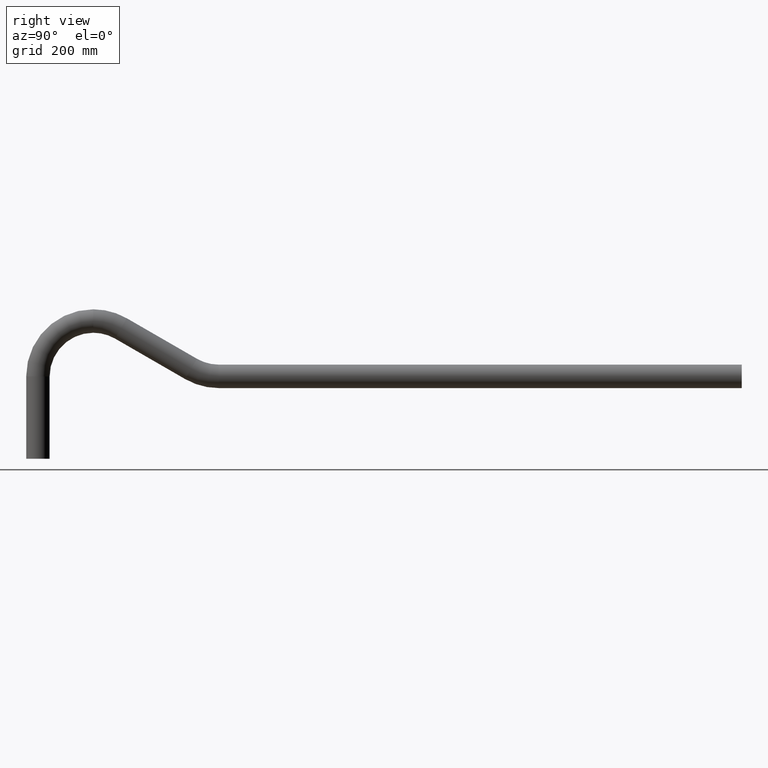
[diagram: clean part render]
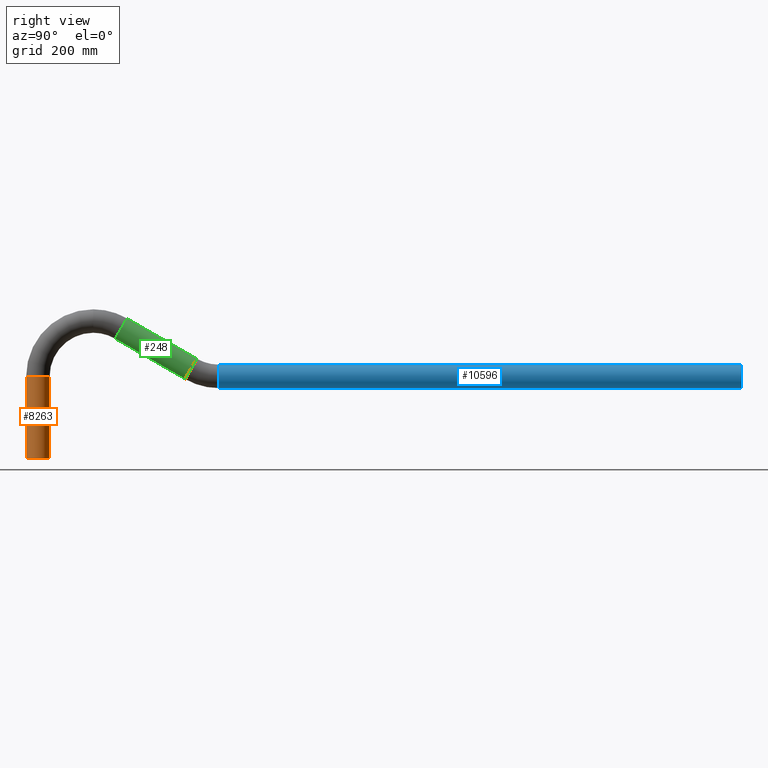
[diagram: same view with three faces highlighted in distinct colors, each labeled with its STEP entity id]
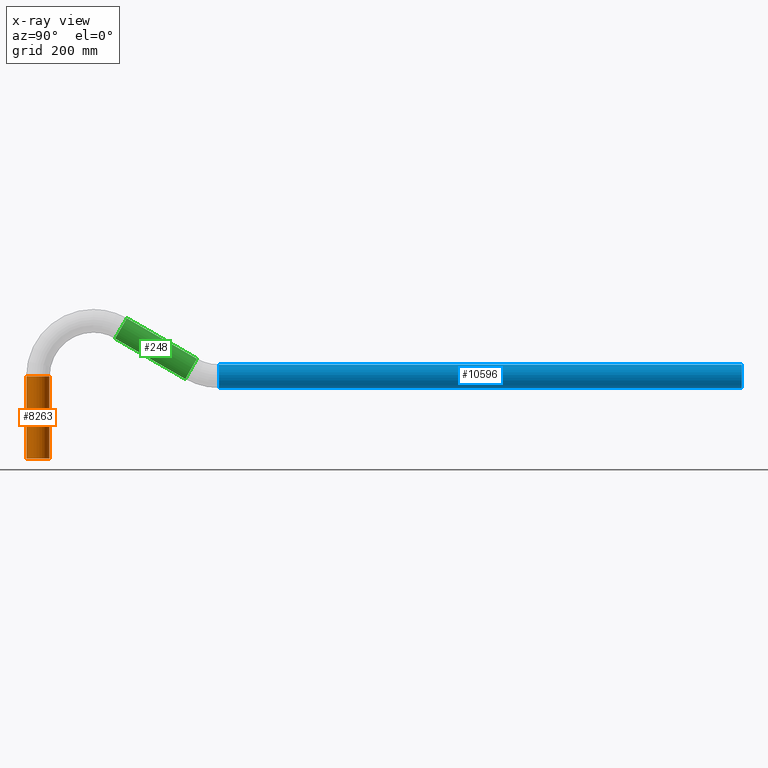
[diagram: x-ray of the same camera — body ghosted, the three highlighted faces saturated]
A machine part, right view with three faces highlighted in distinct colors.
The next image is the same camera in x-ray (body ghosted, the three faces saturated) — at least one of them is partly hidden behind the body in this view.
Their STEP definitions:

[orange] entity #8263 — the highlighted cylindrical surface (edge-blend (fillet) strip) has radius 21.2 mm, axis along (-0, -0, -1).
#385 = AXIS2_PLACEMENT_3D ( 'NONE', #6796, #6687, #8364 ) ;
#505 = EDGE_CURVE ( 'NONE', #3451, #3468, #7781, .T. ) ;
#738 = FACE_OUTER_BOUND ( 'NONE', #8192, .T. ) ;
#1230 = ORIENTED_EDGE ( 'NONE', *, *, #4178, .T. ) ;
#1472 = VERTEX_POINT ( 'NONE', #7569 ) ;
#2020 = CYLINDRICAL_SURFACE ( 'NONE', #385, 21.19999999999999900 ) ;
#2268 = ORIENTED_EDGE ( 'NONE', *, *, #3875, .F. ) ;
#2419 = ORIENTED_EDGE ( 'NONE', *, *, #3532, .T. ) ;
#2795 = DIRECTION ( 'NONE',  ( -0.0000000000000000000, -6.994852725712932700E-017, -1.000000000000000000 ) ) ;
#3451 = VERTEX_POINT ( 'NONE', #4117 ) ;
#3468 = VERTEX_POINT ( 'NONE', #10004 ) ;
#3532 = EDGE_CURVE ( 'NONE', #9891, #1472, #5966, .T. ) ;
#3556 = DIRECTION ( 'NONE',  ( 1.000000000000000000, 0.0000000000000000000, 0.0000000000000000000 ) ) ;
#3875 = EDGE_CURVE ( 'NONE', #9891, #3451, #7874, .T. ) ;
#3906 = AXIS2_PLACEMENT_3D ( 'NONE', #6589, #9133, #4933 ) ;
#4001 = CARTESIAN_POINT ( 'NONE',  ( 2.596251214192388800E-015, -42.40000000000041800, 74.39999999999996300 ) ) ;
#4117 = CARTESIAN_POINT ( 'NONE',  ( 0.0000000000000000000, -4.163336342344337000E-013, 74.39999999999996300 ) ) ;
#4178 = EDGE_CURVE ( 'NONE', #1472, #3468, #5956, .T. ) ;
#4412 = CARTESIAN_POINT ( 'NONE',  ( 0.0000000000000000000, -21.20000000000042600, -74.40000000000002000 ) ) ;
#4933 = DIRECTION ( 'NONE',  ( 1.000000000000000000, 0.0000000000000000000, 0.0000000000000000000 ) ) ;
#5956 = CIRCLE ( 'NONE', #8772, 21.19999999999999900 ) ;
#5966 = LINE ( 'NONE', #10178, #10052 ) ;
#6589 = CARTESIAN_POINT ( 'NONE',  ( 0.0000000000000000000, -21.20000000000041500, 74.39999999999996300 ) ) ;
#6687 = DIRECTION ( 'NONE',  ( -0.0000000000000000000, -6.994852725712932700E-017, -1.000000000000000000 ) ) ;
#6796 = CARTESIAN_POINT ( 'NONE',  ( 0.0000000000000000000, -21.20000000000041500, 74.39999999999996300 ) ) ;
#7384 = VECTOR ( 'NONE', #2795, 1000.000000000000000 ) ;
#7569 = CARTESIAN_POINT ( 'NONE',  ( 2.596251214192389200E-015, -42.40000000000042500, -74.40000000000002000 ) ) ;
#7727 = DIRECTION ( 'NONE',  ( -0.0000000000000000000, -6.994852725712932700E-017, -1.000000000000000000 ) ) ;
#7781 = LINE ( 'NONE', #10131, #7384 ) ;
#7874 = CIRCLE ( 'NONE', #3906, 21.19999999999999900 ) ;
#7963 = ORIENTED_EDGE ( 'NONE', *, *, #505, .F. ) ;
#8192 = EDGE_LOOP ( 'NONE', ( #2268, #2419, #1230, #7963 ) ) ;
#8263 = ADVANCED_FACE ( 'NONE', ( #738 ), #2020, .T. ) ;
#8364 = DIRECTION ( 'NONE',  ( 0.0000000000000000000, 1.000000000000000000, 0.0000000000000000000 ) ) ;
#8772 = AXIS2_PLACEMENT_3D ( 'NONE', #4412, #10145, #3556 ) ;
#9133 = DIRECTION ( 'NONE',  ( 0.0000000000000000000, 0.0000000000000000000, 1.000000000000000000 ) ) ;
#9891 = VERTEX_POINT ( 'NONE', #4001 ) ;
#10004 = CARTESIAN_POINT ( 'NONE',  ( 0.0000000000000000000, -4.267419750902945500E-013, -74.40000000000002000 ) ) ;
#10052 = VECTOR ( 'NONE', #7727, 1000.000000000000000 ) ;
#10131 = CARTESIAN_POINT ( 'NONE',  ( 0.0000000000000000000, -4.163336342344337000E-013, 74.39999999999996300 ) ) ;
#10145 = DIRECTION ( 'NONE',  ( 0.0000000000000000000, 0.0000000000000000000, 1.000000000000000000 ) ) ;
#10178 = CARTESIAN_POINT ( 'NONE',  ( 2.596251214192388800E-015, -42.40000000000041800, 74.39999999999996300 ) ) ;

[blue] entity #10596 — the highlighted cylindrical surface (edge-blend (fillet) strip) has radius 21.2 mm, axis along (0, 1, 0).
#295 = CIRCLE ( 'NONE', #579, 21.19999999999999600 ) ;
#355 = ORIENTED_EDGE ( 'NONE', *, *, #7375, .T. ) ;
#579 = AXIS2_PLACEMENT_3D ( 'NONE', #919, #9265, #6682 ) ;
#881 = EDGE_CURVE ( 'NONE', #10197, #4198, #295, .T. ) ;
#919 = CARTESIAN_POINT ( 'NONE',  ( 0.0000000000000000000, 1250.589999999998100, 74.40000000000003400 ) ) ;
#959 = CARTESIAN_POINT ( 'NONE',  ( 2.596251214192391500E-015, 305.5949192431106700, 53.19999999999999600 ) ) ;
#972 = AXIS2_PLACEMENT_3D ( 'NONE', #3724, #3801, #2118 ) ;
#1345 = CARTESIAN_POINT ( 'NONE',  ( 0.0000000000000000000, 1250.589999999998100, 95.60000000000003700 ) ) ;
#2118 = DIRECTION ( 'NONE',  ( 0.0000000000000000000, 0.0000000000000000000, 1.000000000000000000 ) ) ;
#3019 = EDGE_CURVE ( 'NONE', #6791, #10197, #9199, .T. ) ;
#3526 = CARTESIAN_POINT ( 'NONE',  ( 2.596251214192389200E-015, 1250.589999999998100, 53.20000000000003800 ) ) ;
#3724 = CARTESIAN_POINT ( 'NONE',  ( 0.0000000000000000000, 305.5949192431106700, 74.39999999999999100 ) ) ;
#3801 = DIRECTION ( 'NONE',  ( 0.0000000000000000000, 1.000000000000000000, 4.405669857042791700E-017 ) ) ;
#4198 = VERTEX_POINT ( 'NONE', #3526 ) ;
#4654 = CYLINDRICAL_SURFACE ( 'NONE', #972, 21.19999999999999600 ) ;
#5378 = DIRECTION ( 'NONE',  ( 1.000000000000000000, 0.0000000000000000000, 0.0000000000000000000 ) ) ;
#5413 = DIRECTION ( 'NONE',  ( 0.0000000000000000000, 1.000000000000000000, 0.0000000000000000000 ) ) ;
#5520 = EDGE_CURVE ( 'NONE', #6902, #4198, #7453, .T. ) ;
#5760 = CARTESIAN_POINT ( 'NONE',  ( 0.0000000000000000000, 305.5949192431106700, 95.59999999999999400 ) ) ;
#5802 = VECTOR ( 'NONE', #7190, 1000.000000000000000 ) ;
#6094 = ORIENTED_EDGE ( 'NONE', *, *, #881, .F. ) ;
#6145 = ORIENTED_EDGE ( 'NONE', *, *, #5520, .T. ) ;
#6371 = CARTESIAN_POINT ( 'NONE',  ( 2.596251214192388800E-015, 305.5949192431106700, 53.19999999999999600 ) ) ;
#6682 = DIRECTION ( 'NONE',  ( 1.000000000000000000, 0.0000000000000000000, 0.0000000000000000000 ) ) ;
#6791 = VERTEX_POINT ( 'NONE', #10481 ) ;
#6902 = VERTEX_POINT ( 'NONE', #959 ) ;
#6974 = VECTOR ( 'NONE', #8977, 1000.000000000000000 ) ;
#7011 = ORIENTED_EDGE ( 'NONE', *, *, #3019, .F. ) ;
#7190 = DIRECTION ( 'NONE',  ( 0.0000000000000000000, 1.000000000000000000, 4.405669857042791700E-017 ) ) ;
#7375 = EDGE_CURVE ( 'NONE', #6791, #6902, #8507, .T. ) ;
#7453 = LINE ( 'NONE', #6371, #5802 ) ;
#8507 = CIRCLE ( 'NONE', #9440, 21.19999999999999600 ) ;
#8977 = DIRECTION ( 'NONE',  ( 0.0000000000000000000, 1.000000000000000000, 4.405669857042791700E-017 ) ) ;
#9197 = FACE_OUTER_BOUND ( 'NONE', #9668, .T. ) ;
#9199 = LINE ( 'NONE', #5760, #6974 ) ;
#9265 = DIRECTION ( 'NONE',  ( 0.0000000000000000000, 1.000000000000000000, 0.0000000000000000000 ) ) ;
#9440 = AXIS2_PLACEMENT_3D ( 'NONE', #10311, #5413, #5378 ) ;
#9668 = EDGE_LOOP ( 'NONE', ( #355, #6145, #6094, #7011 ) ) ;
#10197 = VERTEX_POINT ( 'NONE', #1345 ) ;
#10311 = CARTESIAN_POINT ( 'NONE',  ( 0.0000000000000000000, 305.5949192431106700, 74.39999999999999100 ) ) ;
#10481 = CARTESIAN_POINT ( 'NONE',  ( 0.0000000000000000000, 305.5949192431106700, 95.59999999999999400 ) ) ;
#10596 = ADVANCED_FACE ( 'NONE', ( #9197 ), #4654, .T. ) ;

[green] entity #248 — the highlighted cylindrical surface (edge-blend (fillet) strip) has radius 21.2 mm, axis along (0, 0.866, -0.5).
#20 = VECTOR ( 'NONE', #1171, 1000.000000000000000 ) ;
#78 = DIRECTION ( 'NONE',  ( 1.000000000000000000, 0.0000000000000000000, 0.0000000000000000000 ) ) ;
#248 = ADVANCED_FACE ( 'NONE', ( #427 ), #4040, .T. ) ;
#427 = FACE_OUTER_BOUND ( 'NONE', #9600, .T. ) ;
#465 = CIRCLE ( 'NONE', #6142, 21.19999999999999600 ) ;
#1171 = DIRECTION ( 'NONE',  ( 0.0000000000000000000, 0.8660254037844366000, -0.5000000000000036600 ) ) ;
#1238 = CARTESIAN_POINT ( 'NONE',  ( 0.0000000000000000000, 139.3999999999999500, 179.3622789386737400 ) ) ;
#1492 = ORIENTED_EDGE ( 'NONE', *, *, #9269, .T. ) ;
#1878 = CARTESIAN_POINT ( 'NONE',  ( 2.596251214192388400E-015, 118.1999999999997800, 142.6428018182136600 ) ) ;
#2347 = DIRECTION ( 'NONE',  ( 1.000000000000000000, 0.0000000000000000000, 0.0000000000000000000 ) ) ;
#2457 = DIRECTION ( 'NONE',  ( 0.0000000000000000000, 0.8660254037844367100, -0.5000000000000037700 ) ) ;
#2750 = EDGE_CURVE ( 'NONE', #3282, #4464, #5321, .T. ) ;
#2893 = ORIENTED_EDGE ( 'NONE', *, *, #8544, .F. ) ;
#3282 = VERTEX_POINT ( 'NONE', #8934 ) ;
#3288 = DIRECTION ( 'NONE',  ( 0.0000000000000000000, 0.8660254037844366000, -0.5000000000000036600 ) ) ;
#3300 = CARTESIAN_POINT ( 'NONE',  ( 0.0000000000000000000, 266.1949192431103500, 106.1571981817863700 ) ) ;
#3342 = CARTESIAN_POINT ( 'NONE',  ( 0.0000000000000000000, 128.7999999999998700, 161.0025403784436800 ) ) ;
#3581 = DIRECTION ( 'NONE',  ( 0.0000000000000000000, 0.8660254037844366000, -0.5000000000000036600 ) ) ;
#3676 = AXIS2_PLACEMENT_3D ( 'NONE', #4862, #3288, #9774 ) ;
#4040 = CYLINDRICAL_SURFACE ( 'NONE', #3676, 21.19999999999999200 ) ;
#4254 = CARTESIAN_POINT ( 'NONE',  ( 2.596251214192388400E-015, 244.9949192431102200, 69.43772106132628600 ) ) ;
#4365 = ORIENTED_EDGE ( 'NONE', *, *, #2750, .F. ) ;
#4464 = VERTEX_POINT ( 'NONE', #3300 ) ;
#4596 = LINE ( 'NONE', #5236, #4715 ) ;
#4715 = VECTOR ( 'NONE', #3581, 1000.000000000000000 ) ;
#4862 = CARTESIAN_POINT ( 'NONE',  ( 0.0000000000000000000, 128.7999999999998700, 161.0025403784436800 ) ) ;
#5236 = CARTESIAN_POINT ( 'NONE',  ( 2.596251214192388400E-015, 118.1999999999997800, 142.6428018182136600 ) ) ;
#5321 = LINE ( 'NONE', #1238, #20 ) ;
#5381 = CIRCLE ( 'NONE', #6762, 21.19999999999999600 ) ;
#5716 = DIRECTION ( 'NONE',  ( 0.0000000000000000000, 0.8660254037844367100, -0.5000000000000037700 ) ) ;
#5889 = ORIENTED_EDGE ( 'NONE', *, *, #8040, .T. ) ;
#6142 = AXIS2_PLACEMENT_3D ( 'NONE', #3342, #2457, #78 ) ;
#6480 = VERTEX_POINT ( 'NONE', #4254 ) ;
#6623 = VERTEX_POINT ( 'NONE', #1878 ) ;
#6762 = AXIS2_PLACEMENT_3D ( 'NONE', #9008, #5716, #2347 ) ;
#8040 = EDGE_CURVE ( 'NONE', #3282, #6623, #465, .T. ) ;
#8544 = EDGE_CURVE ( 'NONE', #4464, #6480, #5381, .T. ) ;
#8934 = CARTESIAN_POINT ( 'NONE',  ( 0.0000000000000000000, 139.3999999999999500, 179.3622789386737400 ) ) ;
#9008 = CARTESIAN_POINT ( 'NONE',  ( 0.0000000000000000000, 255.5949192431103000, 87.79745962155632800 ) ) ;
#9269 = EDGE_CURVE ( 'NONE', #6623, #6480, #4596, .T. ) ;
#9600 = EDGE_LOOP ( 'NONE', ( #5889, #1492, #2893, #4365 ) ) ;
#9774 = DIRECTION ( 'NONE',  ( 0.0000000000000000000, 0.5000000000000040000, 0.8660254037844362700 ) ) ;